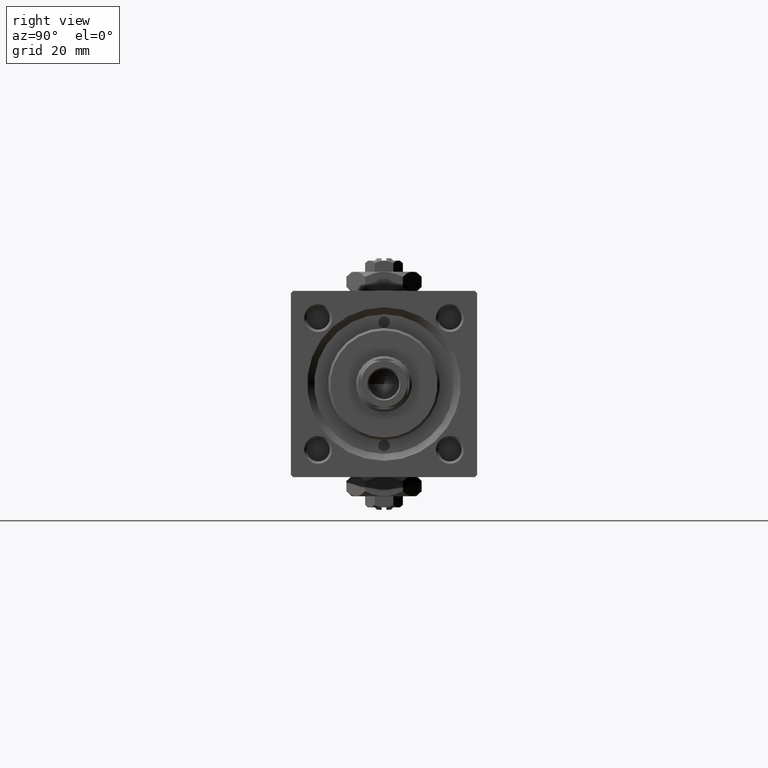
[diagram: clean part render]
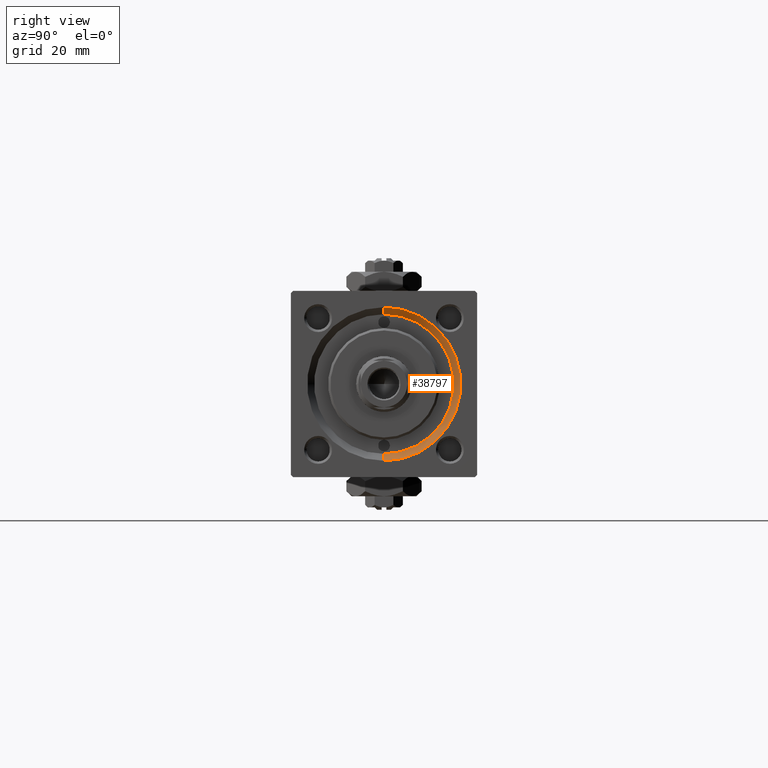
[diagram: same view with one face highlighted and labeled with its STEP entity id]
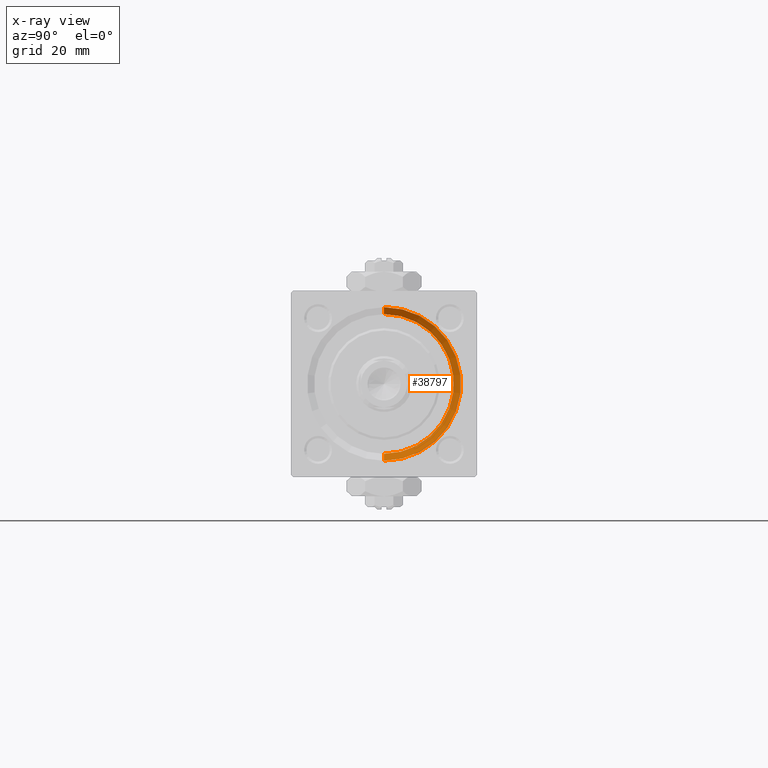
[diagram: x-ray of the same camera — body ghosted, the highlighted face saturated]
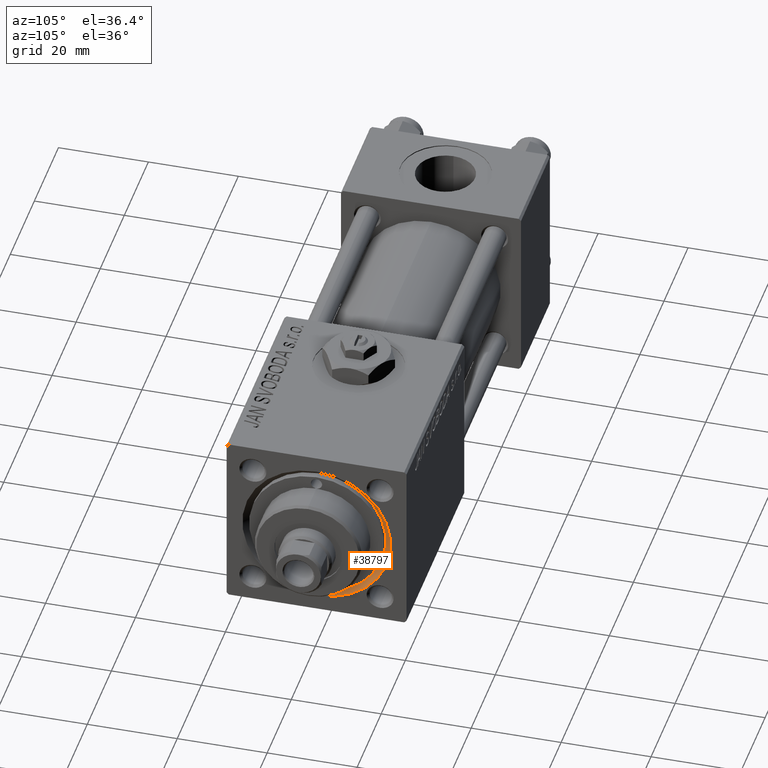
[diagram: same view with one face highlighted and labeled with its STEP entity id]
A machine part, right view. The second image highlights one B-rep face of the part: STEP entity #38797.
The next image is the same camera in x-ray: the body ghosted, the highlighted face saturated — about 0% of this face is hidden behind the body in this view.
A second angle (auxiliary view) of the same face is appended — the face is thin or edge-on in the first view.
In plain terms, the highlighted conical surface has half-angle 45 deg.
Its self-contained STEP definition (entity closure, byte-faithful):
#3031 = AXIS2_PLACEMENT_3D ( 'NONE', #22106, #50923, #6513 ) ;
#3365 = EDGE_CURVE ( 'NONE', #5145, #8269, #7839, .T. ) ;
#3935 = DIRECTION ( 'NONE',  ( 1.000000000000000000, 0.000000000000000000, 0.000000000000000000 ) ) ;
#4475 = AXIS2_PLACEMENT_3D ( 'NONE', #38680, #34975, #50054 ) ;
#5145 = VERTEX_POINT ( 'NONE', #17089 ) ;
#6513 = DIRECTION ( 'NONE',  ( 0.000000000000000000, 0.000000000000000000, 1.000000000000000000 ) ) ;
#7839 = CIRCLE ( 'NONE', #4475, 15.00000000000000000 ) ;
#8269 = VERTEX_POINT ( 'NONE', #35374 ) ;
#10547 = EDGE_CURVE ( 'NONE', #5145, #50851, #33038, .T. ) ;
#10879 = EDGE_CURVE ( 'NONE', #30287, #50851, #43580, .T. ) ;
#13349 = CARTESIAN_POINT ( 'NONE',  ( 119.0000000000000142, 2.020667218593134678E-15, 16.50000000000001421 ) ) ;
#14666 = EDGE_CURVE ( 'NONE', #8269, #30287, #25912, .T. ) ;
#16062 = CONICAL_SURFACE ( 'NONE', #44737, 15.00000000000000000, 0.7853981633974482790 ) ;
#17089 = CARTESIAN_POINT ( 'NONE',  ( 117.5000000000000000, 0.000000000000000000, -15.00000000000000000 ) ) ;
#20604 = EDGE_LOOP ( 'NONE', ( #48885, #25797, #38895, #50058 ) ) ;
#22106 = CARTESIAN_POINT ( 'NONE',  ( 119.0000000000000142, 0.000000000000000000, 0.000000000000000000 ) ) ;
#25652 = DIRECTION ( 'NONE',  ( 0.7071067811865474617, 8.659560562354932858E-17, 0.7071067811865474617 ) ) ;
#25797 = ORIENTED_EDGE ( 'NONE', *, *, #3365, .F. ) ;
#25912 = LINE ( 'NONE', #33333, #50908 ) ;
#27521 = VECTOR ( 'NONE', #37543, 1000.000000000000114 ) ;
#27980 = FACE_OUTER_BOUND ( 'NONE', #20604, .T. ) ;
#30287 = VERTEX_POINT ( 'NONE', #13349 ) ;
#31697 = CARTESIAN_POINT ( 'NONE',  ( 117.5000000000000000, 0.000000000000000000, 0.000000000000000000 ) ) ;
#33038 = LINE ( 'NONE', #45457, #27521 ) ;
#33333 = CARTESIAN_POINT ( 'NONE',  ( 117.5000000000000000, 1.836970198721029589E-15, 15.00000000000000000 ) ) ;
#34975 = DIRECTION ( 'NONE',  ( 1.000000000000000000, 0.000000000000000000, 0.000000000000000000 ) ) ;
#35374 = CARTESIAN_POINT ( 'NONE',  ( 117.5000000000000000, 1.836970198721029589E-15, 15.00000000000000000 ) ) ;
#37543 = DIRECTION ( 'NONE',  ( 0.7071067811865474617, 0.000000000000000000, -0.7071067811865474617 ) ) ;
#38680 = CARTESIAN_POINT ( 'NONE',  ( 117.5000000000000000, 0.000000000000000000, 0.000000000000000000 ) ) ;
#38797 = ADVANCED_FACE ( 'NONE', ( #27980 ), #16062, .F. ) ;
#38895 = ORIENTED_EDGE ( 'NONE', *, *, #10547, .T. ) ;
#41886 = CARTESIAN_POINT ( 'NONE',  ( 119.0000000000000142, 0.000000000000000000, -16.50000000000001421 ) ) ;
#43580 = CIRCLE ( 'NONE', #3031, 16.50000000000001421 ) ;
#43604 = DIRECTION ( 'NONE',  ( 0.000000000000000000, 0.000000000000000000, -1.000000000000000000 ) ) ;
#44737 = AXIS2_PLACEMENT_3D ( 'NONE', #31697, #3935, #43604 ) ;
#45457 = CARTESIAN_POINT ( 'NONE',  ( 117.5000000000000000, 0.000000000000000000, -15.00000000000000000 ) ) ;
#48885 = ORIENTED_EDGE ( 'NONE', *, *, #14666, .F. ) ;
#50054 = DIRECTION ( 'NONE',  ( 0.000000000000000000, 0.000000000000000000, 1.000000000000000000 ) ) ;
#50058 = ORIENTED_EDGE ( 'NONE', *, *, #10879, .F. ) ;
#50851 = VERTEX_POINT ( 'NONE', #41886 ) ;
#50908 = VECTOR ( 'NONE', #25652, 1000.000000000000114 ) ;
#50923 = DIRECTION ( 'NONE',  ( -1.000000000000000000, -0.000000000000000000, -0.000000000000000000 ) ) ;